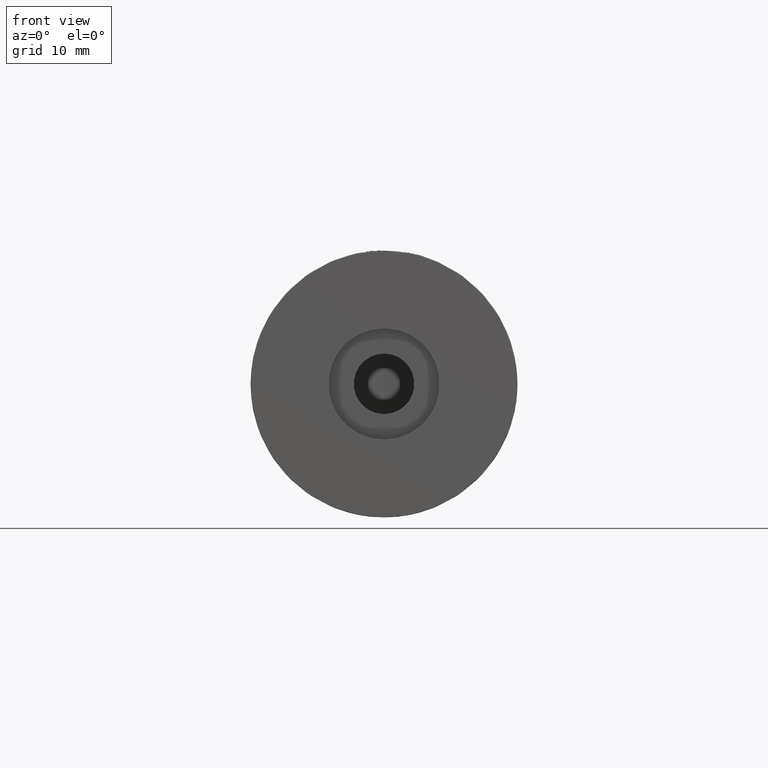
[diagram: clean part render]
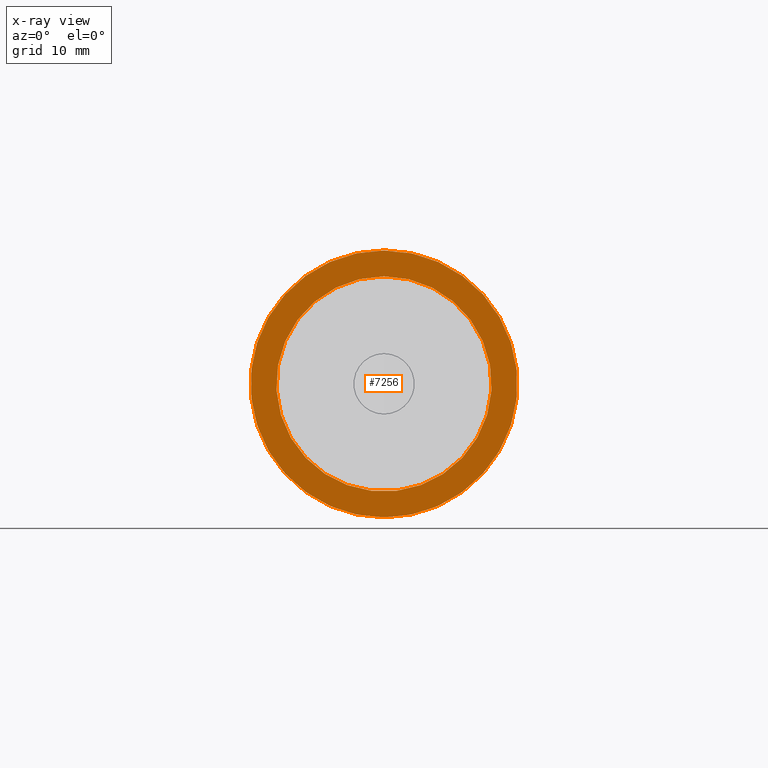
[diagram: x-ray — body ghosted, one internal face saturated and labeled with its STEP entity id]
A machine part, front view, then the same camera in x-ray: the body is ghosted and one INTERNAL B-rep face — a face not visible from any outside direction — is saturated and labeled: STEP entity #7256.
In plain terms, the highlighted planar face has unit normal (0, -1, 0).
Its self-contained STEP definition (entity closure, byte-faithful):
#457 = ORIENTED_EDGE ( 'NONE', *, *, #6749, .F. ) ;
#1365 = CIRCLE ( 'NONE', #4788, 15.00000000000000000 ) ;
#3428 = DIRECTION ( 'NONE',  ( 0.0000000000000000000, 1.000000000000000000, 0.0000000000000000000 ) ) ;
#3741 = VERTEX_POINT ( 'NONE', #12235 ) ;
#4086 = EDGE_LOOP ( 'NONE', ( #15726 ) ) ;
#4329 = CIRCLE ( 'NONE', #15613, 12.10000000000000000 ) ;
#4788 = AXIS2_PLACEMENT_3D ( 'NONE', #10019, #3428, #4790 ) ;
#4790 = DIRECTION ( 'NONE',  ( 0.0000000000000000000, 0.0000000000000000000, 1.000000000000000000 ) ) ;
#5661 = EDGE_LOOP ( 'NONE', ( #457 ) ) ;
#6749 = EDGE_CURVE ( 'NONE', #3741, #3741, #4329, .T. ) ;
#7256 = ADVANCED_FACE ( 'NONE', ( #10785, #11602 ), #10373, .T. ) ;
#8419 = EDGE_CURVE ( 'NONE', #14599, #14599, #1365, .T. ) ;
#8659 = CARTESIAN_POINT ( 'NONE',  ( 0.0000000000000000000, 12.80000000000000100, 0.0000000000000000000 ) ) ;
#9160 = DIRECTION ( 'NONE',  ( 0.0000000000000000000, -0.0000000000000000000, 1.000000000000000000 ) ) ;
#10019 = CARTESIAN_POINT ( 'NONE',  ( 0.0000000000000000000, 12.80000000000000100, 0.0000000000000000000 ) ) ;
#10373 = PLANE ( 'NONE',  #12993 ) ;
#10785 = FACE_OUTER_BOUND ( 'NONE', #4086, .T. ) ;
#11602 = FACE_BOUND ( 'NONE', #5661, .T. ) ;
#12235 = CARTESIAN_POINT ( 'NONE',  ( 0.0000000000000000000, 12.80000000000000100, 12.10000000000000000 ) ) ;
#12619 = DIRECTION ( 'NONE',  ( 0.0000000000000000000, 1.000000000000000000, 0.0000000000000000000 ) ) ;
#12993 = AXIS2_PLACEMENT_3D ( 'NONE', #17147, #14465, #9160 ) ;
#13536 = CARTESIAN_POINT ( 'NONE',  ( 0.0000000000000000000, 12.80000000000000100, 15.00000000000000000 ) ) ;
#14465 = DIRECTION ( 'NONE',  ( 0.0000000000000000000, 1.000000000000000000, 0.0000000000000000000 ) ) ;
#14599 = VERTEX_POINT ( 'NONE', #13536 ) ;
#15331 = DIRECTION ( 'NONE',  ( 0.0000000000000000000, 0.0000000000000000000, 1.000000000000000000 ) ) ;
#15613 = AXIS2_PLACEMENT_3D ( 'NONE', #8659, #12619, #15331 ) ;
#15726 = ORIENTED_EDGE ( 'NONE', *, *, #8419, .T. ) ;
#17147 = CARTESIAN_POINT ( 'NONE',  ( 0.0000000000000000000, 12.80000000000000100, 0.0000000000000000000 ) ) ;